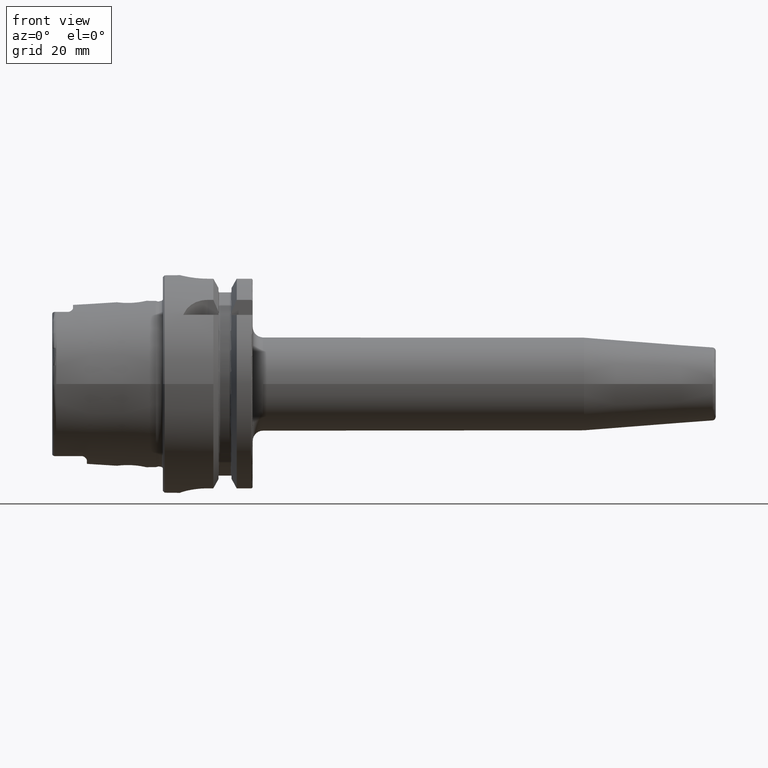
[diagram: clean part render]
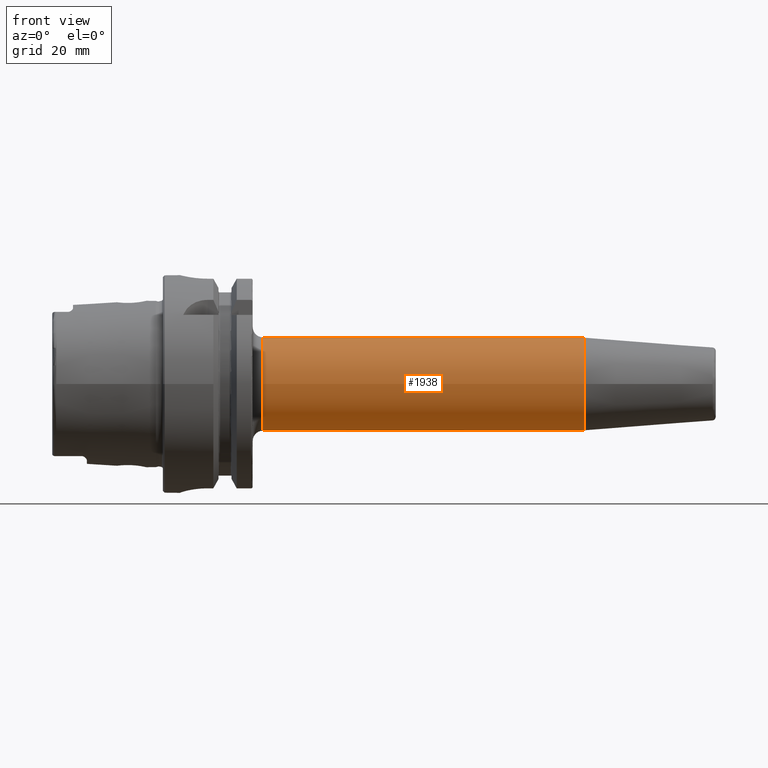
[diagram: same view with one face highlighted and labeled with its STEP entity id]
A machine part, front view. The second image highlights one B-rep face of the part: STEP entity #1938.
In plain terms, the highlighted cylindrical surface (bore or boss wall) has radius 13.5 mm, axis along (1, 0, 0).
Its self-contained STEP definition (entity closure, byte-faithful):
#194=FACE_OUTER_BOUND('',#311,.T.);
#311=EDGE_LOOP('',(#1305,#1306,#1307,#1308,#1309));
#434=LINE('',#2954,#540);
#540=VECTOR('',#2364,13.5);
#652=CIRCLE('',#2085,13.5);
#653=CIRCLE('',#2087,13.5);
#656=CIRCLE('',#2090,13.5);
#775=VERTEX_POINT('',#2942);
#776=VERTEX_POINT('',#2946);
#777=VERTEX_POINT('',#2947);
#980=EDGE_CURVE('',#775,#775,#652,.T.);
#981=EDGE_CURVE('',#776,#777,#653,.T.);
#984=EDGE_CURVE('',#777,#776,#656,.T.);
#985=EDGE_CURVE('',#775,#776,#434,.T.);
#1305=ORIENTED_EDGE('',*,*,#980,.F.);
#1306=ORIENTED_EDGE('',*,*,#985,.T.);
#1307=ORIENTED_EDGE('',*,*,#984,.F.);
#1308=ORIENTED_EDGE('',*,*,#981,.F.);
#1309=ORIENTED_EDGE('',*,*,#985,.F.);
#1899=CYLINDRICAL_SURFACE('',#2091,13.5);
#1938=ADVANCED_FACE('',(#194),#1899,.T.);
#2085=AXIS2_PLACEMENT_3D('',#2944,#2350,#2351);
#2087=AXIS2_PLACEMENT_3D('',#2948,#2354,#2355);
#2090=AXIS2_PLACEMENT_3D('',#2952,#2360,#2361);
#2091=AXIS2_PLACEMENT_3D('',#2953,#2362,#2363);
#2350=DIRECTION('center_axis',(1.,0.,0.));
#2351=DIRECTION('ref_axis',(0.,0.,-1.));
#2354=DIRECTION('center_axis',(-1.,0.,0.));
#2355=DIRECTION('ref_axis',(0.,-1.,-1.22464679914735E-16));
#2360=DIRECTION('center_axis',(-1.,0.,0.));
#2361=DIRECTION('ref_axis',(0.,-1.,-1.22464679914735E-16));
#2362=DIRECTION('center_axis',(1.,0.,0.));
#2363=DIRECTION('ref_axis',(0.,1.,0.));
#2364=DIRECTION('',(-1.,0.,0.));
#2942=CARTESIAN_POINT('',(121.881385791476,-13.5,-1.65327317884893E-15));
#2944=CARTESIAN_POINT('Origin',(121.881385791476,0.,0.));
#2946=CARTESIAN_POINT('',(29.,-13.5,-1.65327317884893E-15));
#2947=CARTESIAN_POINT('',(29.,-1.65327317884893E-15,-13.5));
#2948=CARTESIAN_POINT('Origin',(29.,0.,0.));
#2952=CARTESIAN_POINT('Origin',(29.,0.,0.));
#2953=CARTESIAN_POINT('Origin',(73.9406928957379,0.,0.));
#2954=CARTESIAN_POINT('',(73.9406928957379,-13.5,-1.65327317884893E-15));